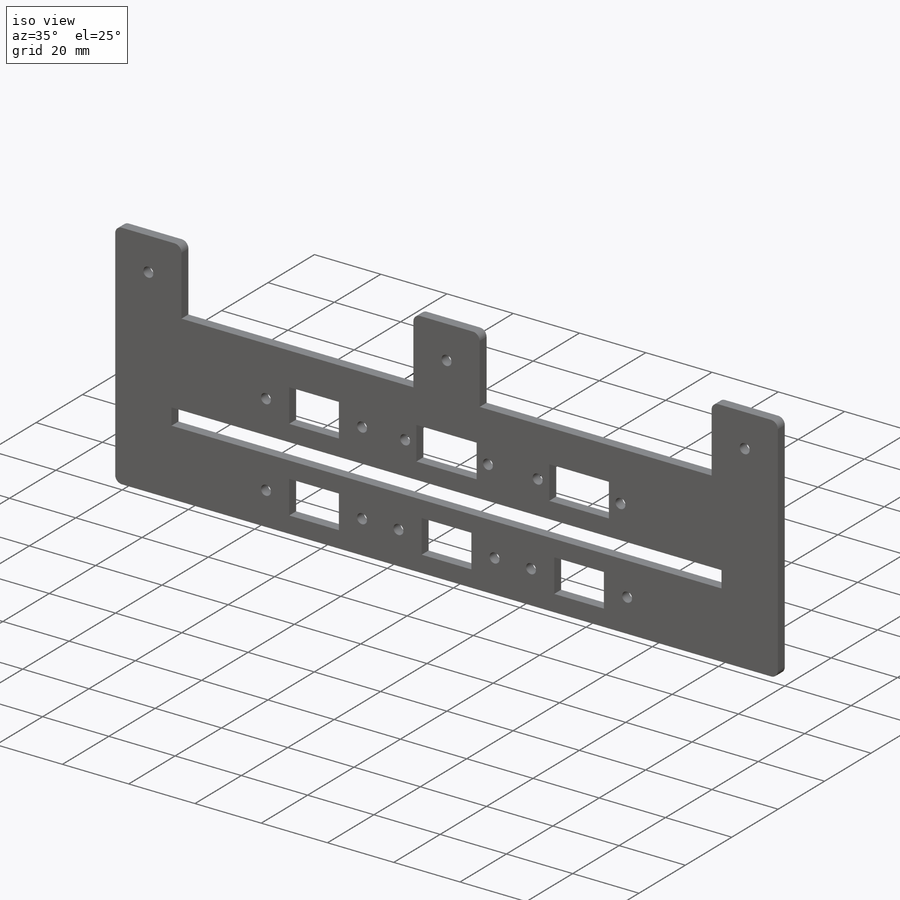
[diagram: iso view]
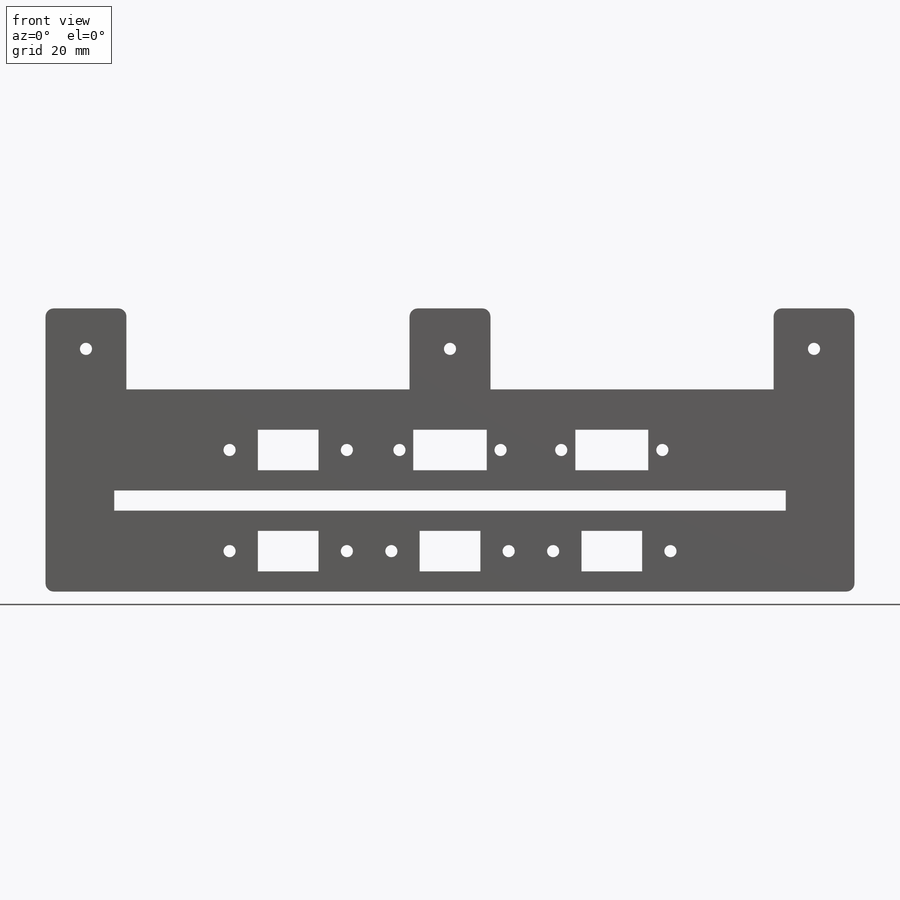
[diagram: front view]
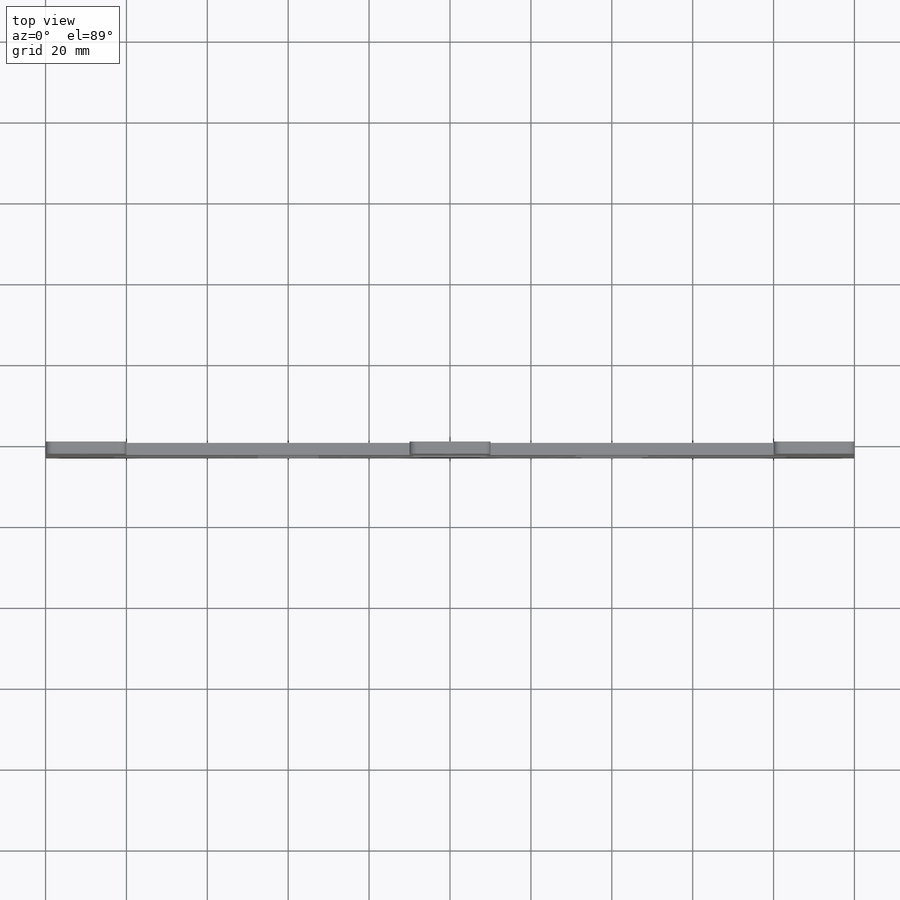
[diagram: top view]
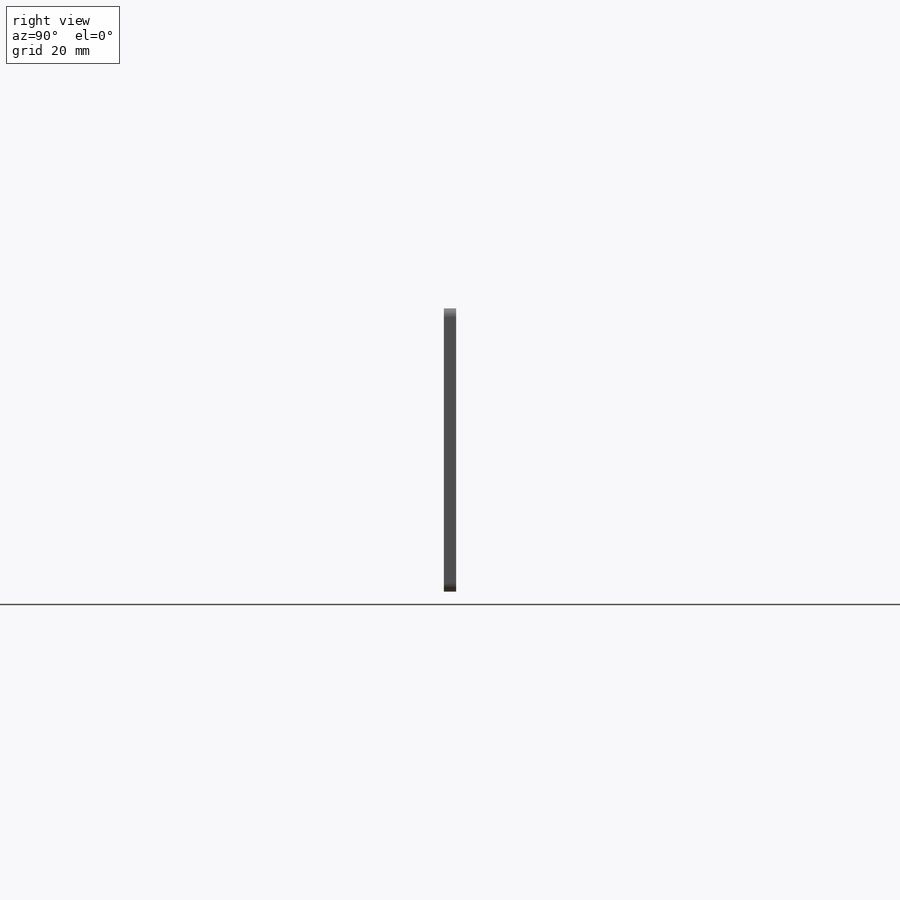
[diagram: right view]
SOLIDWORKS PART (.sldprt)
format: sldprt  version: not decoded by parser v0  size: 1,033,216 bytes
history: native  units: mm
features: sketch x9, cut_extrude x8, plane x3, material x1, extrude x1 + 2 further entries (+8 scaffold rows collapsed)
feature tree (32):
  scaffold x8  (default folders/planes/origin — collapsed)
  material  "ｱｸﾘﾙ (中-上級の耐衝撃性)"
  "ｻｰﾌｪｽ ﾎﾞﾃﾞｨ"
  "ｿﾘｯﾄﾞ ﾎﾞﾃﾞｨ"
  plane  "正面"
  plane  "平面"
  plane  "右側面"
  sketch  "ｽｹｯﾁ1"  dims[D1=200.0mm D2=70.0mm]
  extrude  "ﾎﾞｽ - 押し出し1"  Depth=3mm
  sketch  "ｽｹｯﾁ2"  dims[D1=20.0mm D2=70.0mm D3=20.0mm]
  cut_extrude  "ｶｯﾄ - 押し出し1"  Depth=3mm
  sketch  "ｽｹｯﾁ4"  dims[D1=20.0mm D2=70.0mm D3=20.0mm]
  cut_extrude  "ｶｯﾄ - 押し出し2"  Depth=3mm
  sketch  "ｽｹｯﾁ5"  dims[D1=25.0mm D2=3.0mm D3=166.0mm D4=5.0mm D5=3.0mm]
  cut_extrude  "ｶｯﾄ - 押し出し3"  Depth=3mm
  sketch  "ｽｹｯﾁ6"  dims[D1=2.0mm]
  cut_extrude  "ｶｯﾄ - 押し出し8"  Depth=3mm
  sketch  "ｽｹｯﾁ7"  dims[D3=3.0mm D8=3.0mm D9=3.0mm D1=10.0mm D2=10.0mm D4=10.0mm D5=10.0mm D6=10.0mm D7=10.0mm]
  cut_extrude  "ｶｯﾄ - 押し出し9"  Depth=3mm
  sketch  "ｽｹｯﾁ8"  dims[D1=5.0mm D2=35.5mm D3=15.0mm D4=10.0mm D5=25.0mm D6=15.0mm D7=10.0mm D8=25.0mm D9=15.0mm D10=10.0mm]
  cut_extrude  "ｶｯﾄ - 押し出し10"  Depth=3mm
  sketch  "ｽｹｯﾁ9"  dims[c1.D1=5.0mm c1.D2=15.0mm c1.D3=10.0mm c1.D4=20.0mm c2.D4=9.0mm c2.D5=18.0mm c2.D6=9.1mm c2.D7=18.2mm]
  cut_extrude  "ｶｯﾄ - 押し出し11"  Depth=3mm
  sketch  "ｽｹｯﾁ10"  dims[D13=3.0mm D14=3.0mm D15=3.0mm D16=3.0mm D17=3.0mm D18=3.0mm D19=3.0mm D20=3.0mm D21=3.0mm D22=3.0mm D23=3.0mm D24=3.0mm D1=12.5mm D2=12.5mm D3=12.5mm D4=12.5mm D5=14.5mm D6=14.5mm D7=14.5mm D8=14.5mm D9=14.5mm D10=14.5mm D11=14.5mm D12=14.5mm]
  cut_extrude  "ｶｯﾄ - 押し出し12"  Depth=3mm
decode coverage: 18 of 18 modeling features carry decoded parameters; 2 rows unclassified (native names shown)
note: suppression state not decoded; provenance and decode notes live in map.json
